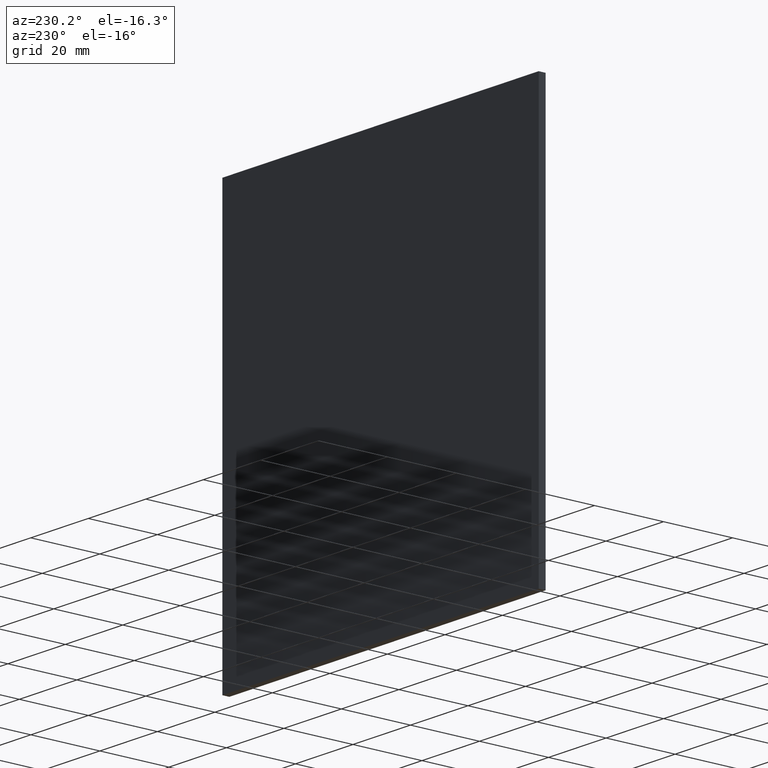
[diagram: clean part render]
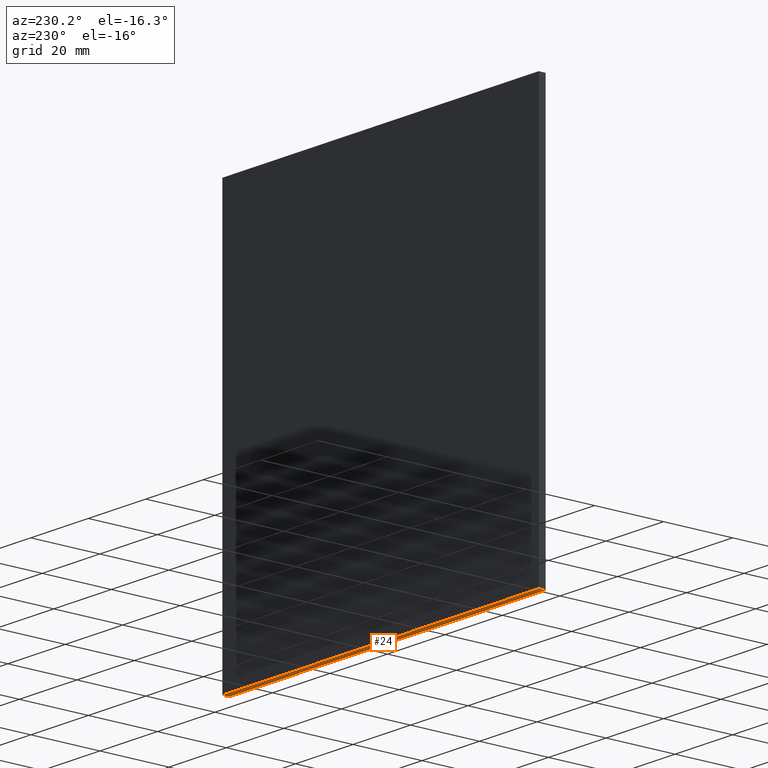
[diagram: same view with one face highlighted and labeled with its STEP entity id]
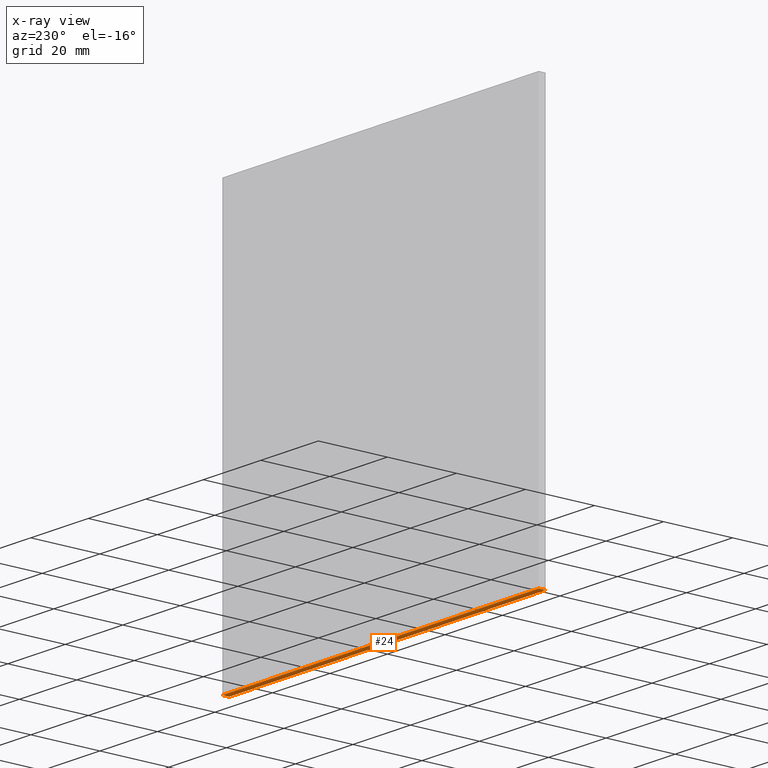
[diagram: x-ray of the same camera — body ghosted, the highlighted face saturated]
A machine part, auxiliary view. The second image highlights one B-rep face of the part: STEP entity #24.
The next image is the same camera in x-ray: the body ghosted, the highlighted face saturated — about 0% of this face is hidden behind the body in this view.
In plain terms, the highlighted planar face has unit normal (0, 0, 1).
Its self-contained STEP definition (entity closure, byte-faithful):
#9 = DIRECTION ( 'NONE',  ( -0.0000000000000000000, -1.000000000000000000, -0.0000000000000000000 ) ) ;
#11 = EDGE_CURVE ( 'NONE', #121, #193, #26, .T. ) ;
#20 = LINE ( 'NONE', #149, #101 ) ;
#24 = ADVANCED_FACE ( 'NONE', ( #134 ), #153, .F. ) ;
#26 = LINE ( 'NONE', #194, #189 ) ;
#30 = DIRECTION ( 'NONE',  ( 1.000000000000000000, 0.0000000000000000000, -0.0000000000000000000 ) ) ;
#52 = EDGE_LOOP ( 'NONE', ( #177, #103, #104, #109 ) ) ;
#53 = LINE ( 'NONE', #59, #202 ) ;
#59 = CARTESIAN_POINT ( 'NONE',  ( -55.00000000000000700, 2.000000000000000000, -60.00000000000002100 ) ) ;
#65 = EDGE_CURVE ( 'NONE', #150, #121, #20, .T. ) ;
#73 = DIRECTION ( 'NONE',  ( -0.0000000000000000000, -1.000000000000000000, -0.0000000000000000000 ) ) ;
#82 = EDGE_CURVE ( 'NONE', #150, #173, #94, .T. ) ;
#92 = CARTESIAN_POINT ( 'NONE',  ( -55.00000000000000700, 2.000000000000000000, -60.00000000000002100 ) ) ;
#94 = LINE ( 'NONE', #98, #128 ) ;
#98 = CARTESIAN_POINT ( 'NONE',  ( -55.00000000000000700, 2.000000000000000000, -60.00000000000002100 ) ) ;
#101 = VECTOR ( 'NONE', #9, 1000.000000000000000 ) ;
#103 = ORIENTED_EDGE ( 'NONE', *, *, #158, .F. ) ;
#104 = ORIENTED_EDGE ( 'NONE', *, *, #82, .F. ) ;
#109 = ORIENTED_EDGE ( 'NONE', *, *, #65, .T. ) ;
#110 = DIRECTION ( 'NONE',  ( -1.000000000000000000, -0.0000000000000000000, -0.0000000000000000000 ) ) ;
#112 = CARTESIAN_POINT ( 'NONE',  ( -55.00000000000000700, 2.000000000000000000, -60.00000000000002100 ) ) ;
#113 = CARTESIAN_POINT ( 'NONE',  ( 55.00000000000000700, 0.0000000000000000000, -60.00000000000002100 ) ) ;
#121 = VERTEX_POINT ( 'NONE', #113 ) ;
#128 = VECTOR ( 'NONE', #136, 1000.000000000000000 ) ;
#134 = FACE_OUTER_BOUND ( 'NONE', #52, .T. ) ;
#136 = DIRECTION ( 'NONE',  ( -1.000000000000000000, -0.0000000000000000000, -0.0000000000000000000 ) ) ;
#149 = CARTESIAN_POINT ( 'NONE',  ( 55.00000000000000700, 2.000000000000000000, -60.00000000000002100 ) ) ;
#150 = VERTEX_POINT ( 'NONE', #154 ) ;
#153 = PLANE ( 'NONE',  #163 ) ;
#154 = CARTESIAN_POINT ( 'NONE',  ( 55.00000000000000700, 2.000000000000000000, -60.00000000000002100 ) ) ;
#158 = EDGE_CURVE ( 'NONE', #173, #193, #53, .T. ) ;
#163 = AXIS2_PLACEMENT_3D ( 'NONE', #112, #169, #30 ) ;
#169 = DIRECTION ( 'NONE',  ( 0.0000000000000000000, 0.0000000000000000000, 1.000000000000000000 ) ) ;
#173 = VERTEX_POINT ( 'NONE', #92 ) ;
#177 = ORIENTED_EDGE ( 'NONE', *, *, #11, .T. ) ;
#182 = CARTESIAN_POINT ( 'NONE',  ( -55.00000000000000700, 0.0000000000000000000, -60.00000000000002100 ) ) ;
#189 = VECTOR ( 'NONE', #110, 1000.000000000000000 ) ;
#193 = VERTEX_POINT ( 'NONE', #182 ) ;
#194 = CARTESIAN_POINT ( 'NONE',  ( -55.00000000000000700, 0.0000000000000000000, -60.00000000000002100 ) ) ;
#202 = VECTOR ( 'NONE', #73, 1000.000000000000000 ) ;